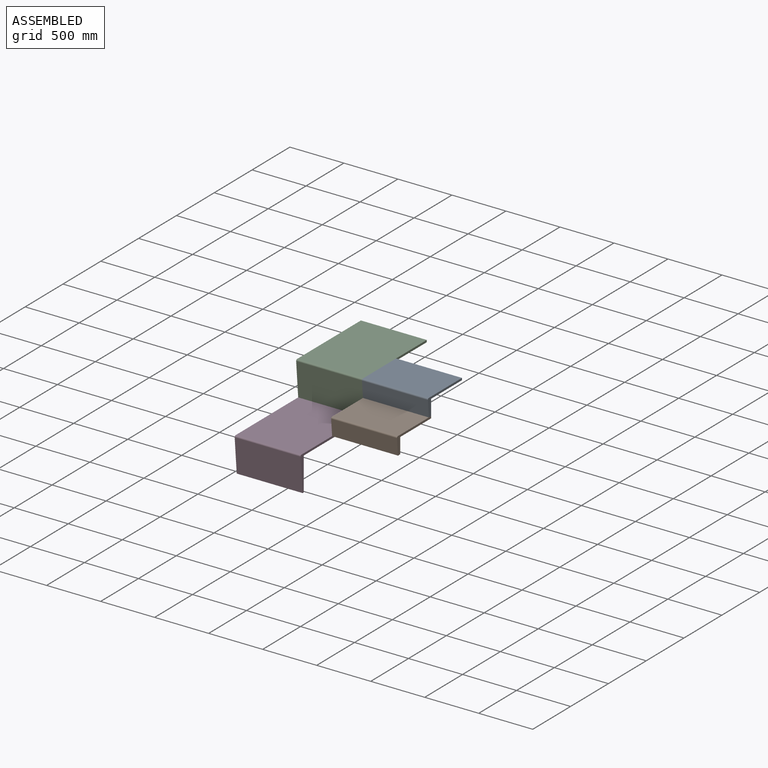
[diagram: assembled view]
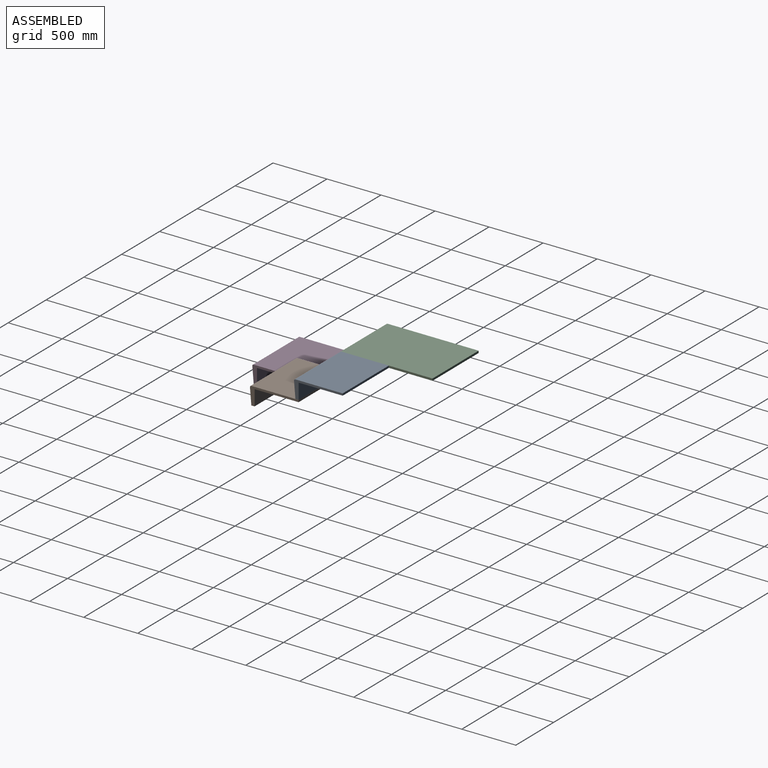
[diagram: assembled view, second angle]
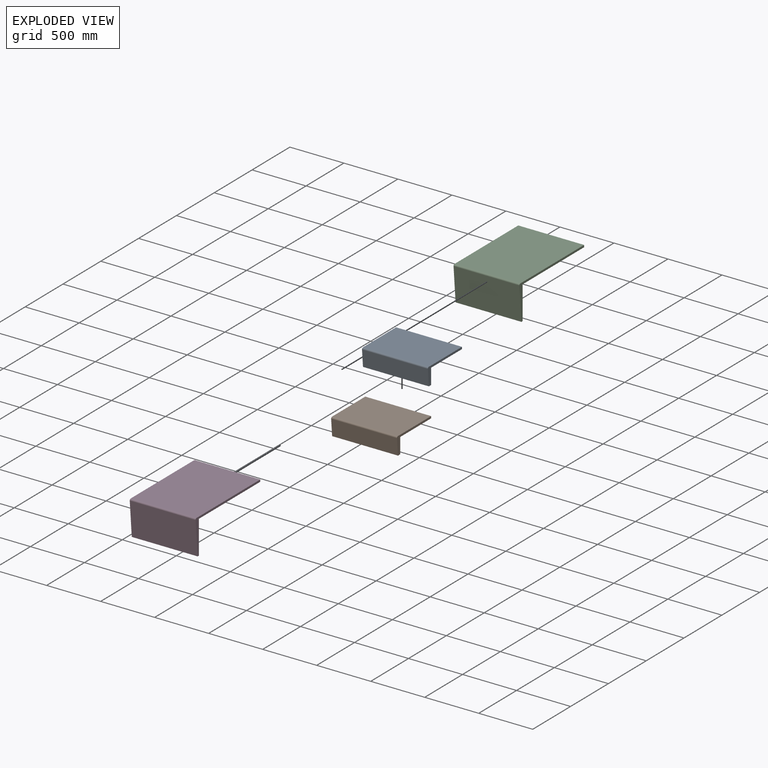
[diagram: exploded view]
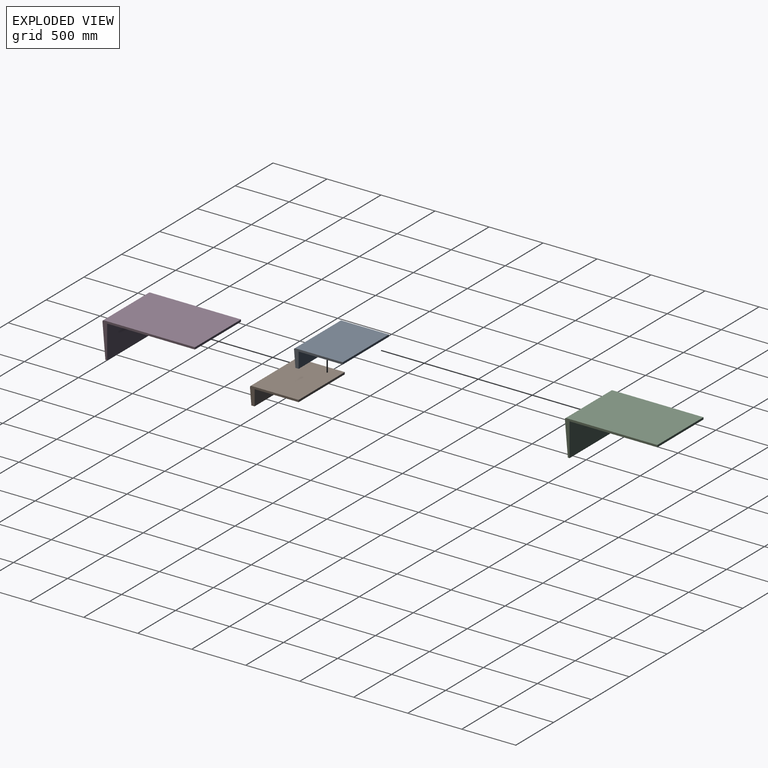
[diagram: exploded view, second angle]
ASSEMBLY  parts=4 mates=3
PART A: 9 faces, bbox 609.6x450.9x163.5 mm
  f0: plane 609.6x437.85mm, normal (0,0,1), area 266913mm2, adj f1,f6,f7,f8
  f1: cylinder r=12.7mm len=609.6mm, axis (-1,0,0), area 12675.8mm2, adj f0,f2,f7,f8
  f2: plane 609.6x150.28mm, normal (0,-1,-0.09), area 91951.2mm2, adj f1,f3,f7,f8
  f3: plane 609.6x29.94mm, normal (0,0,-1), area 18250mm2, adj f2,f4,f7,f8
  f4: plane 609.6x144.46mm, normal (0,1,0), area 88064.3mm2, adj f3,f5,f7,f8
  f5: plane 609.6x407.99mm, normal (0,0,-1), area 248709.2mm2, adj f4,f6,f7,f8
  f6: plane 609.6x19.05mm, normal (0,1,0), area 11612.9mm2, adj f0,f5,f7,f8
  f7: plane 450.86x163.52mm, normal (1,0,0), area 13775.1mm2, adj f0,f1,f2,f3,f4,f5,f6
  f8: plane 450.86x163.52mm, normal (-1,0,0), area 13775.1mm2, adj f0,f1,f2,f3,f4,f5,f6
PART B: same geometry as A
PART C: 9 faces, bbox 609.6x855.7x327 mm
  f0: plane 842.66x609.6mm, normal (0,0,1), area 513686.7mm2, adj f1,f6,f7,f8
  f1: cylinder r=12.7mm len=609.6mm, axis (-1,0,0), area 12675.8mm2, adj f0,f2,f7,f8
  f2: plane 609.6x313.8mm, normal (0,-1,-0.09), area 191996.4mm2, adj f1,f3,f7,f8
  f3: plane 609.6x15.88mm, normal (0,0,-1), area 9677.4mm2, adj f2,f4,f7,f8
  f4: plane 609.6x307.98mm, normal (0,1,0), area 187741.6mm2, adj f3,f5,f7,f8
  f5: plane 812.8x609.6mm, normal (0,0,-1), area 495482.9mm2, adj f4,f6,f7,f8
  f6: plane 609.6x19.05mm, normal (0,1,0), area 11612.9mm2, adj f0,f5,f7,f8
  f7: plane 855.67x327.03mm, normal (1,0,0), area 25232.2mm2, adj f0,f1,f2,f3,f4,f5,f6
  f8: plane 855.67x327.03mm, normal (-1,0,0), area 25232.2mm2, adj f0,f1,f2,f3,f4,f5,f6
PART D: same geometry as C
PLACE A t=(1179.74,885.5,-552.29)mm
PLACE B t=(1179.74,477.52,-715.81)mm
PLACE C t=(570.14,741.7,-497.27)mm
PLACE D t=(570.14,-71.1,-824.3)mm
MATE fastened D.f6 <-> C.f4  axis (0,1,0) through (1179.74,741.7,-805.25)mm
MATE fastened A.f4 <-> B.f6  axis (0,1,0) through (1484.54,741.7,-641.73)mm
MATE revolute C.f1 <-> A.f1  axis (-1,0,0) through (1179.74,711.52,-490.92)mm
